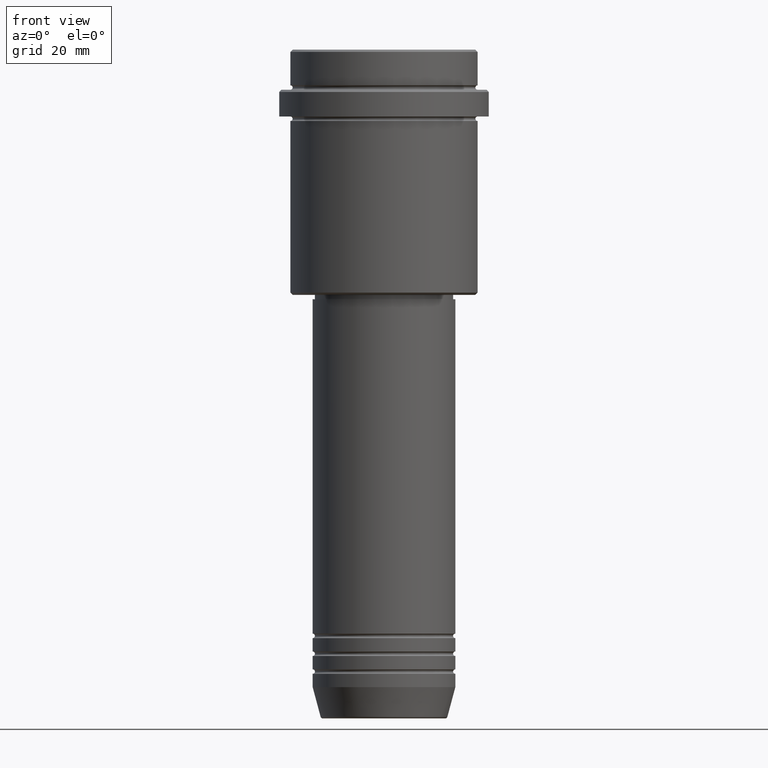
[diagram: clean part render]
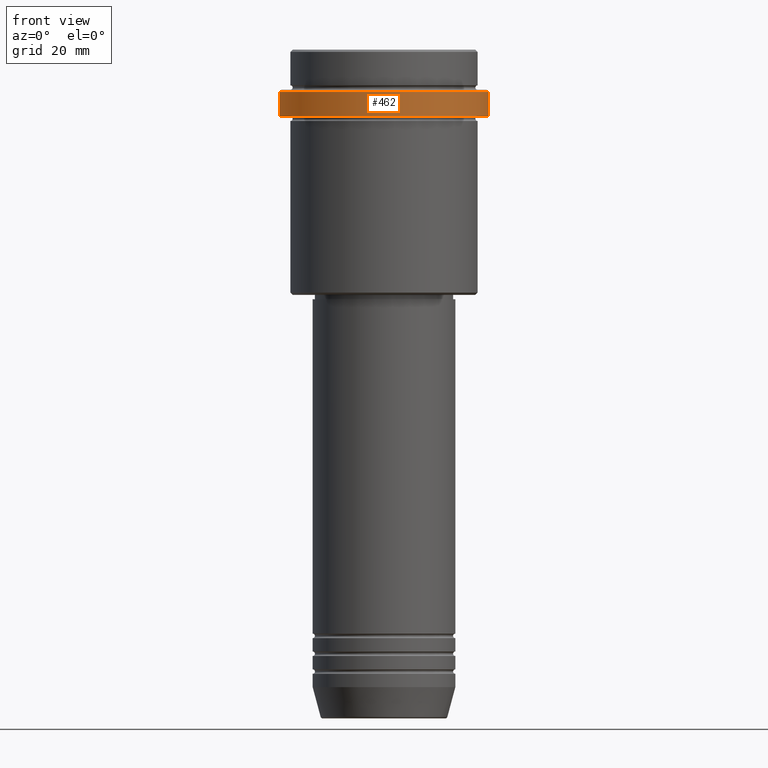
[diagram: same view with one face highlighted and labeled with its STEP entity id]
A machine part, front view. The second image highlights one B-rep face of the part: STEP entity #462.
In plain terms, the highlighted cylindrical surface (partial cylindrical patch) has radius 23.5 mm, axis along (-0, -0, 1).
Its self-contained STEP definition (entity closure, byte-faithful):
#69 = DIRECTION ( 'NONE',  ( -0.000000000000000000, -0.000000000000000000, 1.000000000000000000 ) ) ;
#97 = ORIENTED_EDGE ( 'NONE', *, *, #827, .F. ) ;
#101 = EDGE_CURVE ( 'NONE', #1075, #525, #638, .T. ) ;
#193 = DIRECTION ( 'NONE',  ( 1.000000000000000000, 0.000000000000000000, 0.000000000000000000 ) ) ;
#197 = CARTESIAN_POINT ( 'NONE',  ( -23.50000000000000000, 2.877919977996280320E-15, 0.000000000000000000 ) ) ;
#200 = DIRECTION ( 'NONE',  ( 1.000000000000000000, 0.000000000000000000, 0.000000000000000000 ) ) ;
#232 = LINE ( 'NONE', #1105, #870 ) ;
#238 = VECTOR ( 'NONE', #1068, 1000.000000000000000 ) ;
#242 = CIRCLE ( 'NONE', #1406, 23.50000000000000000 ) ;
#257 = VERTEX_POINT ( 'NONE', #1154 ) ;
#261 = AXIS2_PLACEMENT_3D ( 'NONE', #1396, #69, #1388 ) ;
#346 = CARTESIAN_POINT ( 'NONE',  ( 23.50000000000000355, 0.000000000000000000, -14.99999999999998757 ) ) ;
#365 = DIRECTION ( 'NONE',  ( -0.000000000000000000, -0.000000000000000000, 1.000000000000000000 ) ) ;
#462 = ADVANCED_FACE ( 'NONE', ( #961 ), #1279, .T. ) ;
#505 = EDGE_LOOP ( 'NONE', ( #97, #1037, #1391, #954 ) ) ;
#525 = VERTEX_POINT ( 'NONE', #346 ) ;
#543 = DIRECTION ( 'NONE',  ( 0.000000000000000000, 0.000000000000000000, -1.000000000000000000 ) ) ;
#605 = LINE ( 'NONE', #197, #238 ) ;
#638 = CIRCLE ( 'NONE', #687, 23.50000000000000355 ) ;
#655 = CARTESIAN_POINT ( 'NONE',  ( 0.000000000000000000, 0.000000000000000000, -9.500000000000015987 ) ) ;
#687 = AXIS2_PLACEMENT_3D ( 'NONE', #747, #1187, #193 ) ;
#747 = CARTESIAN_POINT ( 'NONE',  ( 0.000000000000000000, 0.000000000000000000, -14.99999999999998757 ) ) ;
#827 = EDGE_CURVE ( 'NONE', #1075, #257, #605, .T. ) ;
#870 = VECTOR ( 'NONE', #365, 1000.000000000000000 ) ;
#954 = ORIENTED_EDGE ( 'NONE', *, *, #1025, .T. ) ;
#961 = FACE_OUTER_BOUND ( 'NONE', #505, .T. ) ;
#1025 = EDGE_CURVE ( 'NONE', #1056, #257, #242, .T. ) ;
#1037 = ORIENTED_EDGE ( 'NONE', *, *, #101, .T. ) ;
#1056 = VERTEX_POINT ( 'NONE', #1094 ) ;
#1068 = DIRECTION ( 'NONE',  ( -0.000000000000000000, -0.000000000000000000, 1.000000000000000000 ) ) ;
#1075 = VERTEX_POINT ( 'NONE', #1313 ) ;
#1094 = CARTESIAN_POINT ( 'NONE',  ( 23.50000000000000000, 0.000000000000000000, -9.500000000000015987 ) ) ;
#1105 = CARTESIAN_POINT ( 'NONE',  ( 23.50000000000000000, 0.000000000000000000, 0.000000000000000000 ) ) ;
#1154 = CARTESIAN_POINT ( 'NONE',  ( -23.50000000000000000, 2.877919977996280320E-15, -9.500000000000015987 ) ) ;
#1187 = DIRECTION ( 'NONE',  ( -0.000000000000000000, -0.000000000000000000, 1.000000000000000000 ) ) ;
#1279 = CYLINDRICAL_SURFACE ( 'NONE', #261, 23.50000000000000000 ) ;
#1313 = CARTESIAN_POINT ( 'NONE',  ( -23.50000000000000711, 2.877919977996281109E-15, -14.99999999999998757 ) ) ;
#1388 = DIRECTION ( 'NONE',  ( 1.000000000000000000, 0.000000000000000000, 0.000000000000000000 ) ) ;
#1391 = ORIENTED_EDGE ( 'NONE', *, *, #1398, .T. ) ;
#1396 = CARTESIAN_POINT ( 'NONE',  ( 0.000000000000000000, 0.000000000000000000, 0.000000000000000000 ) ) ;
#1398 = EDGE_CURVE ( 'NONE', #525, #1056, #232, .T. ) ;
#1406 = AXIS2_PLACEMENT_3D ( 'NONE', #655, #543, #200 ) ;